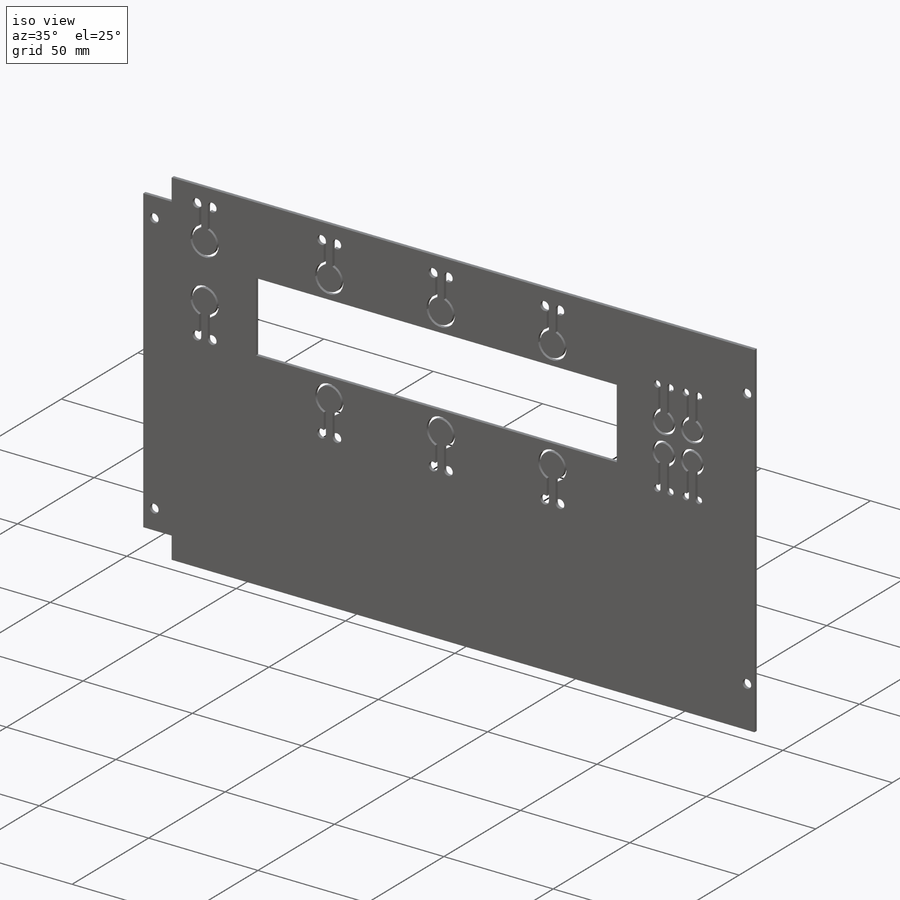
[diagram: iso view]
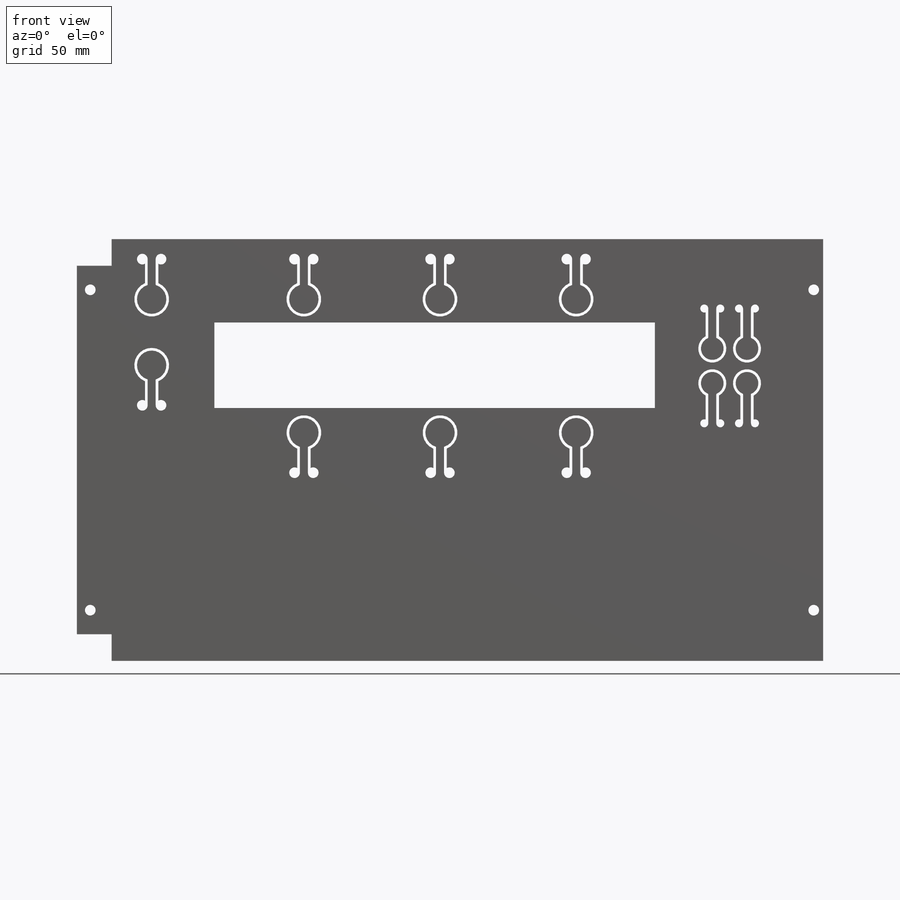
[diagram: front view]
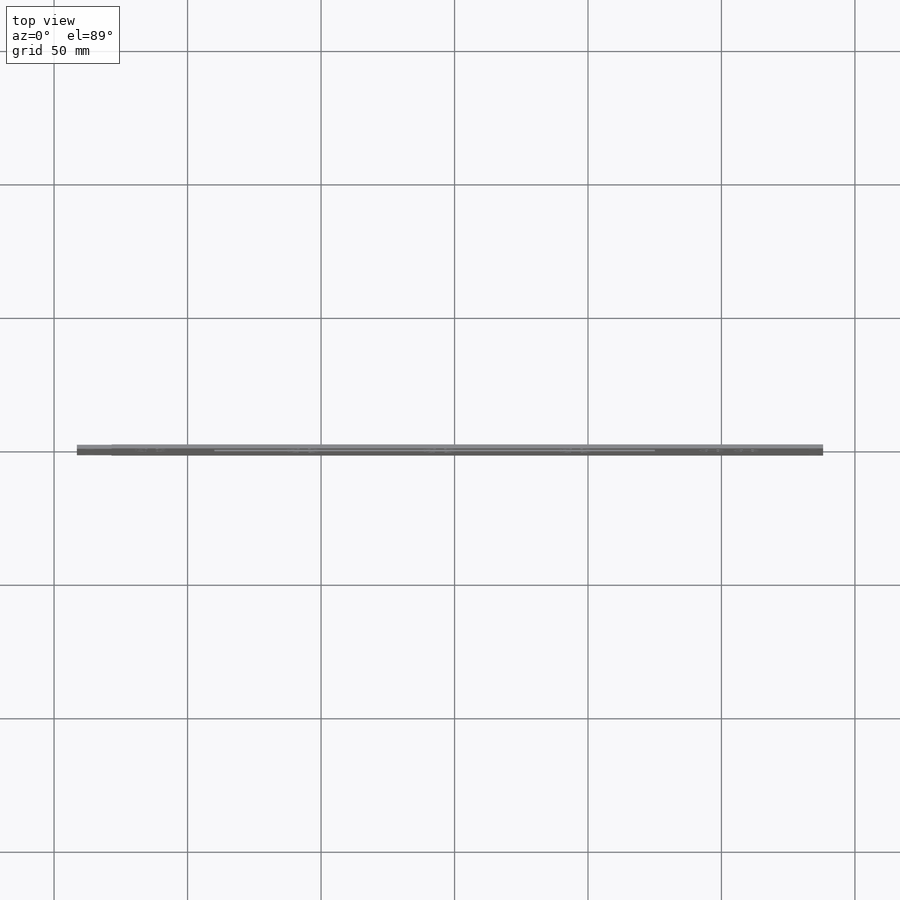
[diagram: top view]
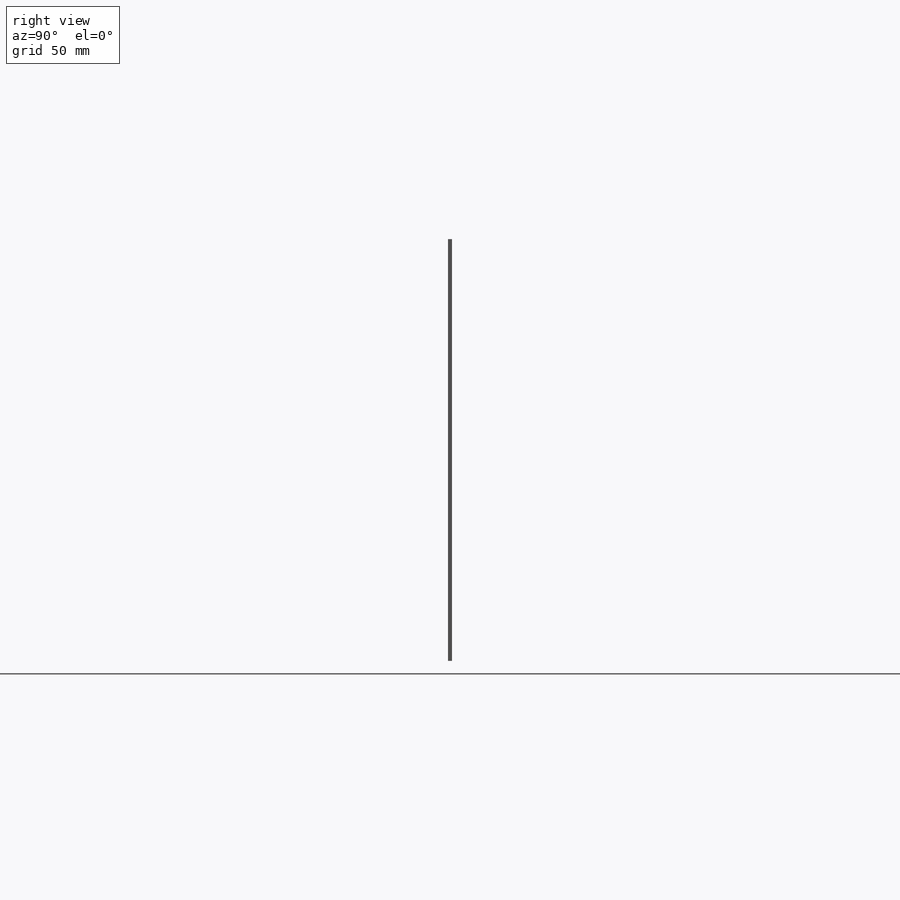
[diagram: right view]
SOLIDWORKS PART (.sldprt)
format: sldprt  version: not decoded by parser v0  size: 754,688 bytes
history: native  units: mm
features: plane x3, sketch x3, cut_extrude x2, material x1, extrude x1, fillet x1 (+9 scaffold rows collapsed)
feature tree (20):
  scaffold x9  (default folders/planes/origin — collapsed)
  material  "Material <não especificado>"
  plane  "Plano frontal"
  plane  "Plano superior"
  plane  "Plano direito"
  sketch  "Model"  dims[c1.D11=10.5mm c1.D12=10.5mm c1.D13=10.5mm c1.D14=10.5mm c1.D15=13.0mm c1.D16=~5.200708mm c1.D18=13.0mm c1.D26=11.0mm c1.D27=6.0mm c1.D28=6.5mm c1.D30=6.5mm c1.D31=6.5mm c1.D32=13.0mm c1.D33=11.0mm c1.D40=12.0mm c1.D41=13.0mm c1.D46=13.0mm c1.D47=11.0mm c1.D50=4.0mm c1.D51=4.0mm c1.D52=4.0mm c1.D53=4.0mm c1.D29=2.0mm c2.D27=~4.068066mm c2.D29=~3.415991mm c2.D15=13.0mm c2.D18=5.5mm c2.D52=~4.514275mm c2.D53=6.5mm c2.D54=6.5mm c2.D30=10.5mm c2.D40=10.5mm c3.D53=6.5mm c3.D54=6.5mm c3.D31=6.5mm c4.D54=6.5mm c4.D55=6.5mm c4.D56=6.5mm c4.D57=~4.728818mm c4.D62=5.25mm c4.D12=5.25mm c4.D14=~4.344699mm c5.D62=6.5mm c5.D63=4.0mm c5.D64=5.5mm c5.D65=5.5mm c5.D66=6.5mm c5.D67=5.5mm c5.D1=284.0mm c5.D2=174.0mm c5.D3=10.0mm c5.D4=8.0mm c5.D5=10.0mm c5.D6=8.0mm c5.D7=8.0mm c5.D8=10.0mm c5.D9=8.0mm c5.D10=10.0mm c5.D16=1.5mm c5.D17=3.0mm c5.D18=29.5mm c5.D19=9.25mm c5.D20=39.25mm c5.D21=32.0mm c5.D22=165.0mm c5.D23=56.0mm c5.D24=1.0mm c5.D25=1.0mm c5.D27=5.0mm c5.D29=5.0mm c6.D27=15.0mm c6.D29=15.0mm c6.D30=9.25mm c6.D31=~92.494223mm c6.D34=3.0mm c6.D35=1.5mm c6.D36=1.0mm c6.D37=1.0mm c6.D38=15.0mm c6.D39=15.0mm c6.D40=9.25mm c6.D41=9.25mm c6.D42=3.0mm c6.D43=1.5mm c6.D44=1.0mm c6.D45=1.0mm c6.D48=15.0mm c6.D49=15.0mm c6.D52=16.0mm c6.D53=~6.464102mm c7.D27=10.0mm c7.D29=2.0mm c8.D27=10.0mm c8.D29=1.0mm c9.D27=15.0mm c9.D29=165.0mm c9.D18=~11.565114mm c9.D19=1.0mm c10.D29=1.0mm c10.D50=3.0mm c10.D51=1.5mm c10.D52=15.0mm c10.D53=9.25mm c10.D54=~29.684539mm c10.D30=9.75mm c10.D40=9.25mm c10.D41=21.5mm c11.D53=8.75mm c11.D54=51.0mm c11.D31=29.5mm c12.D54=33.5mm c12.D55=12.375mm c12.D56=24.75mm c12.D57=1.0mm c12.D58=1.0mm c12.D59=3.0mm c12.D60=1.5mm c12.D61=15.0mm c12.D62=6.5mm c12.D12=6.5mm c12.D14=9.25mm c13.D62=15.0mm c13.D63=15.0mm c13.D64=15.0mm c13.D65=15.0mm c13.D66=15.0mm c13.D67=15.0mm]
  extrude  "Ressalto-extrusão1"  Depth=1.5mm
  sketch  "Esboço1"  dims[c1.D5=~262.71585mm c1.D1=13.0mm c1.D2=13.0mm c2.D1=7.0mm c2.D2=7.0mm c2.D3=7.0mm c3.D1=8.0mm c3.D2=8.0mm c3.D3=~8.718144mm c3.D4=4.5mm c3.D5=10.0mm c3.D6=13.0mm c3.D7=13.0mm c3.D8=10.0mm c4.D5=10.0mm c4.D6=13.0mm c4.D8=10.0mm c4.D1=8.0mm c4.D3=8.0mm]
  cut_extrude  "Corte-extrusão1"  Depth=10mm
  sketch  "Esboço2"  dims[c1.D1=2.0mm c1.D2=2.0mm c1.D3=2.0mm c2.D1=4.0mm c2.D2=4.0mm c2.D3=4.0mm c2.D4=4.0mm c2.D5=4.0mm c2.D6=4.0mm c2.D7=4.0mm c3.D5=4.0mm c3.D8=4.0mm c3.D1=3.5mm c3.D2=3.5mm c3.D3=5.0mm c3.D4=5.0mm c4.D5=21.0mm c4.D6=21.0mm c4.D7=19.0mm c5.D5=120.0mm c5.D6=120.0mm c5.D8=19.0mm]
  cut_extrude  "Corte-extrusão2"  [1 undecoded]
  fillet  "Filete1"  Radius=0.25mm
decode coverage: 6 of 7 modeling features carry decoded parameters
note: ~ marks probable driven/reference dimensions
note: 1 parameter value undecoded
note: suppression state not decoded; provenance and decode notes live in map.json
